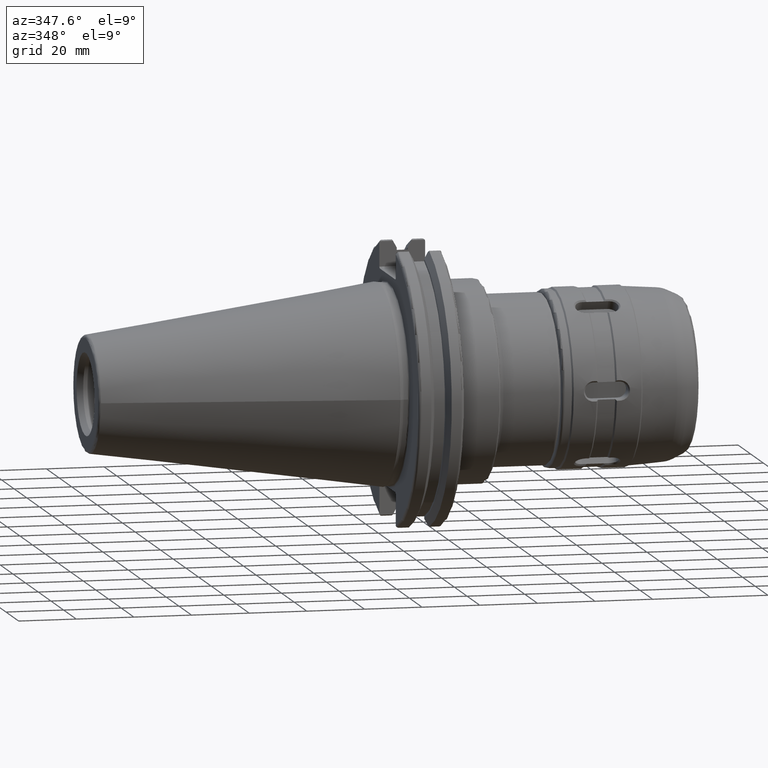
[diagram: clean part render]
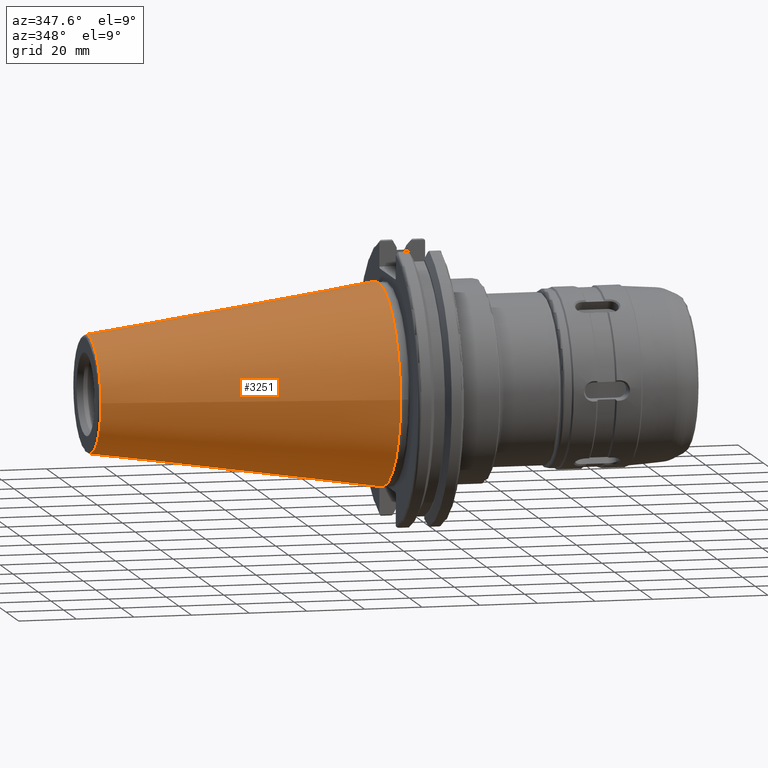
[diagram: same view with one face highlighted and labeled with its STEP entity id]
A machine part, auxiliary view. The second image highlights one B-rep face of the part: STEP entity #3251.
In plain terms, the highlighted conical surface has half-angle 8.297 deg.
Its self-contained STEP definition (entity closure, byte-faithful):
#109=CONICAL_SURFACE('',#3579,27.5166666666666,0.14481249823894);
#336=FACE_OUTER_BOUND('',#528,.T.);
#528=EDGE_LOOP('',(#2400,#2401,#2402,#2403,#2404,#2405,#2406));
#735=LINE('',#5228,#946);
#946=VECTOR('',#4124,27.5166666666666);
#1166=CIRCLE('',#3570,20.233121911427);
#1167=CIRCLE('',#3571,20.233121911427);
#1171=CIRCLE('',#3575,20.233121911427);
#1174=CIRCLE('',#3580,34.925);
#1175=CIRCLE('',#3581,34.925);
#1407=VERTEX_POINT('',#5207);
#1408=VERTEX_POINT('',#5208);
#1409=VERTEX_POINT('',#5210);
#1414=VERTEX_POINT('',#5224);
#1415=VERTEX_POINT('',#5225);
#1786=EDGE_CURVE('',#1407,#1408,#1166,.T.);
#1787=EDGE_CURVE('',#1408,#1409,#1167,.T.);
#1791=EDGE_CURVE('',#1409,#1407,#1171,.T.);
#1794=EDGE_CURVE('',#1414,#1415,#1174,.T.);
#1795=EDGE_CURVE('',#1415,#1414,#1175,.T.);
#1796=EDGE_CURVE('',#1415,#1408,#735,.T.);
#2400=ORIENTED_EDGE('',*,*,#1794,.F.);
#2401=ORIENTED_EDGE('',*,*,#1795,.F.);
#2402=ORIENTED_EDGE('',*,*,#1796,.T.);
#2403=ORIENTED_EDGE('',*,*,#1786,.F.);
#2404=ORIENTED_EDGE('',*,*,#1791,.F.);
#2405=ORIENTED_EDGE('',*,*,#1787,.F.);
#2406=ORIENTED_EDGE('',*,*,#1796,.F.);
#3251=ADVANCED_FACE('',(#336),#109,.T.);
#3570=AXIS2_PLACEMENT_3D('',#5209,#4100,#4101);
#3571=AXIS2_PLACEMENT_3D('',#5211,#4102,#4103);
#3575=AXIS2_PLACEMENT_3D('',#5217,#4110,#4111);
#3579=AXIS2_PLACEMENT_3D('',#5223,#4118,#4119);
#3580=AXIS2_PLACEMENT_3D('',#5226,#4120,#4121);
#3581=AXIS2_PLACEMENT_3D('',#5227,#4122,#4123);
#4100=DIRECTION('center_axis',(-1.,0.,0.));
#4101=DIRECTION('ref_axis',(0.,-1.,3.06161699786838E-17));
#4102=DIRECTION('center_axis',(-1.,0.,0.));
#4103=DIRECTION('ref_axis',(0.,-1.,3.06161699786838E-17));
#4110=DIRECTION('center_axis',(-1.,0.,0.));
#4111=DIRECTION('ref_axis',(0.,-1.,3.06161699786838E-17));
#4118=DIRECTION('center_axis',(1.,0.,0.));
#4119=DIRECTION('ref_axis',(0.,1.,0.));
#4120=DIRECTION('center_axis',(1.,0.,0.));
#4121=DIRECTION('ref_axis',(0.,0.,-1.));
#4122=DIRECTION('center_axis',(1.,0.,0.));
#4123=DIRECTION('ref_axis',(0.,0.,-1.));
#4124=DIRECTION('',(-0.989532981063281,0.144306893071729,1.76724974695192E-17));
#5207=CARTESIAN_POINT('',(-100.744306893072,20.233121911427,-6.19460699639681E-15));
#5208=CARTESIAN_POINT('',(-100.744306893072,-20.233121911427,-2.47784279855872E-15));
#5209=CARTESIAN_POINT('Origin',(-100.744306893072,0.,-3.09730349819841E-15));
#5210=CARTESIAN_POINT('',(-100.744306893072,-2.47784279855872E-15,20.233121911427));
#5211=CARTESIAN_POINT('Origin',(-100.744306893072,0.,-3.09730349819841E-15));
#5217=CARTESIAN_POINT('Origin',(-100.744306893072,0.,-3.09730349819841E-15));
#5223=CARTESIAN_POINT('Origin',(-50.8,0.,0.));
#5224=CARTESIAN_POINT('',(0.,34.925,0.));
#5225=CARTESIAN_POINT('',(-8.88178419700125E-15,-34.925,-4.27707894602213E-15));
#5226=CARTESIAN_POINT('Origin',(0.,0.,0.));
#5227=CARTESIAN_POINT('Origin',(0.,0.,0.));
#5228=CARTESIAN_POINT('',(-50.8,-27.5166666666666,-3.3698197756538E-15));